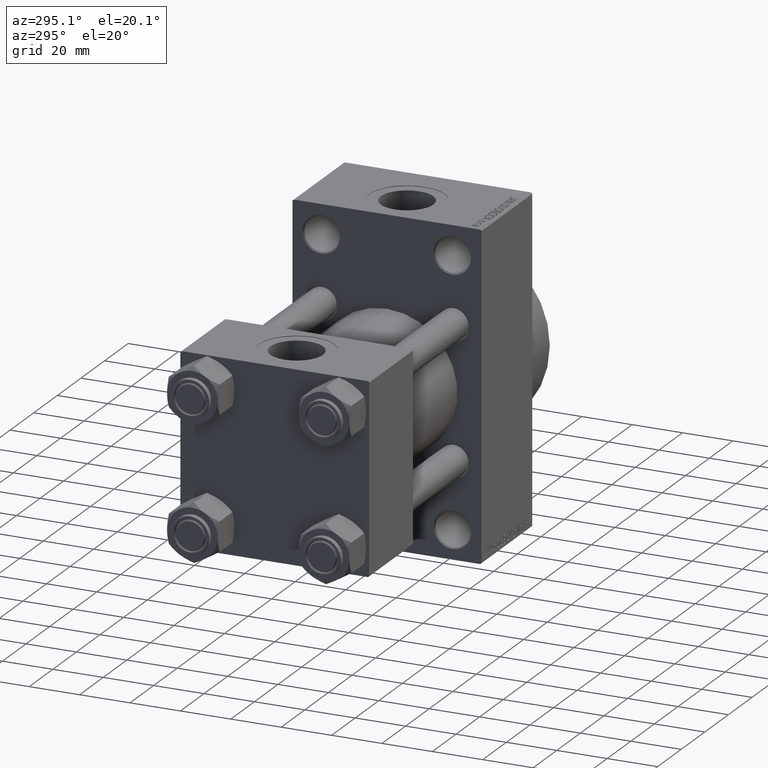
[diagram: clean part render]
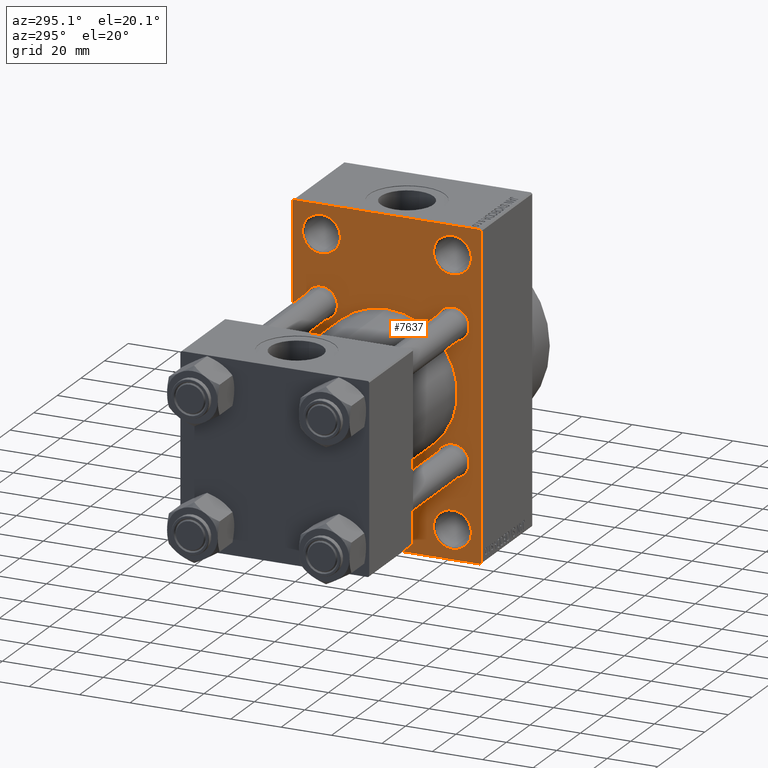
[diagram: same view with one face highlighted and labeled with its STEP entity id]
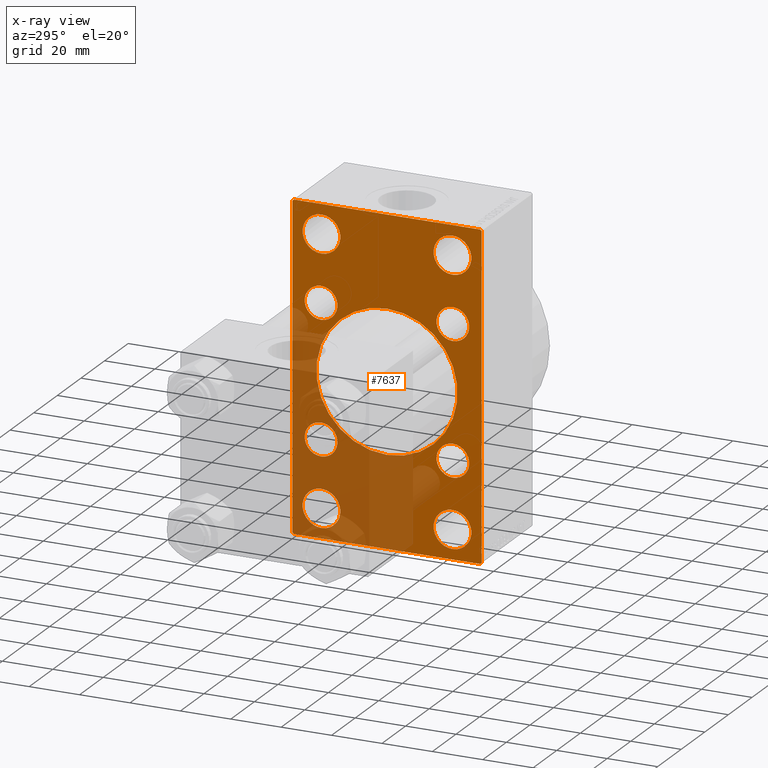
[diagram: x-ray of the same camera — body ghosted, the highlighted face saturated]
A machine part, auxiliary view. The second image highlights one B-rep face of the part: STEP entity #7637.
The next image is the same camera in x-ray: the body ghosted, the highlighted face saturated — about 37% of this face is hidden behind the body in this view.
In plain terms, the highlighted planar face has unit normal (-1, 0, 0).
Its self-contained STEP definition (entity closure, byte-faithful):
#173 = DIRECTION ( 'NONE',  ( 0.000000000000000000, 0.000000000000000000, 1.000000000000000000 ) ) ;
#477 = DIRECTION ( 'NONE',  ( 1.000000000000000000, -0.000000000000000000, 0.000000000000000000 ) ) ;
#812 = CARTESIAN_POINT ( 'NONE',  ( 95.00000000000000000, 8.269258236473776482E-16, -28.00000000000000000 ) ) ;
#918 = EDGE_LOOP ( 'NONE', ( #46518, #29435 ) ) ;
#1554 = LINE ( 'NONE', #27803, #47577 ) ;
#1596 = DIRECTION ( 'NONE',  ( 1.000000000000000000, -0.000000000000000000, 0.000000000000000000 ) ) ;
#2275 = CARTESIAN_POINT ( 'NONE',  ( 95.00000000000000000, -37.49999999999999289, 63.49999999999994316 ) ) ;
#2374 = CARTESIAN_POINT ( 'NONE',  ( 95.00000000000000000, -50.49999999999970868, 50.50000000000040501 ) ) ;
#2399 = ORIENTED_EDGE ( 'NONE', *, *, #43304, .T. ) ;
#2785 = AXIS2_PLACEMENT_3D ( 'NONE', #23182, #37879, #19566 ) ;
#3405 = CARTESIAN_POINT ( 'NONE',  ( 95.00000000000000000, -25.99999999999999645, 59.99999999999997868 ) ) ;
#3514 = ORIENTED_EDGE ( 'NONE', *, *, #41981, .T. ) ;
#3758 = EDGE_LOOP ( 'NONE', ( #3514, #2399 ) ) ;
#3868 = DIRECTION ( 'NONE',  ( 0.000000000000000000, -5.421010862427522170E-17, -1.000000000000000000 ) ) ;
#3911 = CARTESIAN_POINT ( 'NONE',  ( 95.00000000000000000, 26.00000000000000000, 52.49999999999999289 ) ) ;
#3943 = CARTESIAN_POINT ( 'NONE',  ( 95.00000000000000000, 36.99999999999997158, 63.99999999999998579 ) ) ;
#3975 = DIRECTION ( 'NONE',  ( 0.000000000000000000, 0.000000000000000000, 1.000000000000000000 ) ) ;
#4314 = VERTEX_POINT ( 'NONE', #13632 ) ;
#4448 = ORIENTED_EDGE ( 'NONE', *, *, #37592, .T. ) ;
#4760 = AXIS2_PLACEMENT_3D ( 'NONE', #15823, #44733, #33426 ) ;
#4849 = DIRECTION ( 'NONE',  ( 0.000000000000000000, 0.000000000000000000, 1.000000000000000000 ) ) ;
#4914 = ORIENTED_EDGE ( 'NONE', *, *, #26057, .T. ) ;
#5276 = VERTEX_POINT ( 'NONE', #12188 ) ;
#5713 = EDGE_CURVE ( 'NONE', #30526, #36212, #45836, .T. ) ;
#5764 = DIRECTION ( 'NONE',  ( -0.000000000000000000, 0.7071067811865524577, 0.7071067811865426878 ) ) ;
#5804 = CARTESIAN_POINT ( 'NONE',  ( 95.00000000000000000, -25.99999999999999645, 45.00000000000002132 ) ) ;
#6191 = VERTEX_POINT ( 'NONE', #10324 ) ;
#6220 = CIRCLE ( 'NONE', #11633, 7.499999999999978684 ) ;
#6575 = DIRECTION ( 'NONE',  ( 1.000000000000000000, 0.000000000000000000, 0.000000000000000000 ) ) ;
#6653 = CARTESIAN_POINT ( 'NONE',  ( 95.00000000000000000, 26.14999999999999858, -19.64999999999999503 ) ) ;
#7058 = AXIS2_PLACEMENT_3D ( 'NONE', #28549, #24689, #25182 ) ;
#7259 = CARTESIAN_POINT ( 'NONE',  ( 95.00000000000000000, -25.99999999999999645, -52.49999999999999289 ) ) ;
#7595 = LINE ( 'NONE', #29057, #13430 ) ;
#7637 = ADVANCED_FACE ( 'NONE', ( #16422, #15714, #46055, #20266, #45829, #41492, #8475, #34737, #12805, #38583 ), #45580, .T. ) ;
#7790 = DIRECTION ( 'NONE',  ( 0.000000000000000000, 0.000000000000000000, 1.000000000000000000 ) ) ;
#7932 = LINE ( 'NONE', #30365, #22520 ) ;
#8025 = CARTESIAN_POINT ( 'NONE',  ( 95.00000000000000000, -26.14999999999999147, -32.65000000000001990 ) ) ;
#8454 = EDGE_CURVE ( 'NONE', #5276, #35429, #1554, .T. ) ;
#8475 = FACE_BOUND ( 'NONE', #29706, .T. ) ;
#8674 = VERTEX_POINT ( 'NONE', #12043 ) ;
#8796 = ORIENTED_EDGE ( 'NONE', *, *, #20780, .T. ) ;
#8851 = EDGE_LOOP ( 'NONE', ( #4914, #46372 ) ) ;
#8979 = EDGE_CURVE ( 'NONE', #24511, #34808, #14900, .T. ) ;
#9250 = LINE ( 'NONE', #12885, #11079 ) ;
#9427 = DIRECTION ( 'NONE',  ( 0.000000000000000000, 0.000000000000000000, -1.000000000000000000 ) ) ;
#9702 = VERTEX_POINT ( 'NONE', #12954 ) ;
#9846 = ORIENTED_EDGE ( 'NONE', *, *, #14146, .T. ) ;
#9940 = EDGE_CURVE ( 'NONE', #13711, #35793, #30159, .T. ) ;
#10088 = EDGE_CURVE ( 'NONE', #32802, #18074, #28593, .T. ) ;
#10153 = CARTESIAN_POINT ( 'NONE',  ( 95.00000000000000000, -26.14999999999999147, 19.65000000000000213 ) ) ;
#10324 = CARTESIAN_POINT ( 'NONE',  ( 95.00000000000000000, 26.14999999999999858, 32.65000000000001990 ) ) ;
#10523 = CARTESIAN_POINT ( 'NONE',  ( 95.00000000000000000, 26.14999999999999858, 26.15000000000000213 ) ) ;
#10642 = CARTESIAN_POINT ( 'NONE',  ( 95.00000000000000000, -25.99999999999999645, -52.49999999999999289 ) ) ;
#10784 = EDGE_CURVE ( 'NONE', #35793, #13711, #32472, .T. ) ;
#10863 = ORIENTED_EDGE ( 'NONE', *, *, #45833, .F. ) ;
#11079 = VECTOR ( 'NONE', #27597, 1000.000000000000000 ) ;
#11258 = VECTOR ( 'NONE', #5764, 1000.000000000000000 ) ;
#11437 = DIRECTION ( 'NONE',  ( 1.000000000000000000, -0.000000000000000000, 0.000000000000000000 ) ) ;
#11633 = AXIS2_PLACEMENT_3D ( 'NONE', #12158, #37482, #11919 ) ;
#11735 = CARTESIAN_POINT ( 'NONE',  ( 95.00000000000000000, 26.00000000000000000, 45.00000000000001421 ) ) ;
#11823 = EDGE_CURVE ( 'NONE', #34808, #5276, #7932, .T. ) ;
#11919 = DIRECTION ( 'NONE',  ( 0.000000000000000000, 0.000000000000000000, 1.000000000000000000 ) ) ;
#12043 = CARTESIAN_POINT ( 'NONE',  ( 95.00000000000000000, -25.99999999999999645, -59.99999999999997158 ) ) ;
#12081 = AXIS2_PLACEMENT_3D ( 'NONE', #37589, #477, #40484 ) ;
#12158 = CARTESIAN_POINT ( 'NONE',  ( 95.00000000000000000, 26.00000000000000000, -52.49999999999999289 ) ) ;
#12188 = CARTESIAN_POINT ( 'NONE',  ( 95.00000000000000000, 37.49999999999999289, -63.50000000000001421 ) ) ;
#12630 = DIRECTION ( 'NONE',  ( -0.000000000000000000, -0.7071067811865573427, -0.7071067811865378028 ) ) ;
#12805 = FACE_BOUND ( 'NONE', #25846, .T. ) ;
#12831 = VERTEX_POINT ( 'NONE', #36729 ) ;
#12872 = CIRCLE ( 'NONE', #46707, 7.499999999999978684 ) ;
#12885 = CARTESIAN_POINT ( 'NONE',  ( 95.00000000000000000, -37.49999999999999289, 63.99999999999997158 ) ) ;
#12954 = CARTESIAN_POINT ( 'NONE',  ( 95.00000000000000000, -36.99999999999995737, 63.99999999999997158 ) ) ;
#12999 = DIRECTION ( 'NONE',  ( 1.000000000000000000, -0.000000000000000000, 0.000000000000000000 ) ) ;
#13119 = CARTESIAN_POINT ( 'NONE',  ( 95.00000000000000000, -26.14999999999999147, -19.65000000000000213 ) ) ;
#13314 = DIRECTION ( 'NONE',  ( 0.000000000000000000, 0.000000000000000000, -1.000000000000000000 ) ) ;
#13430 = VECTOR ( 'NONE', #18915, 999.9999999999998863 ) ;
#13632 = CARTESIAN_POINT ( 'NONE',  ( 95.00000000000000000, 26.00000000000000000, -45.00000000000001421 ) ) ;
#13711 = VERTEX_POINT ( 'NONE', #8025 ) ;
#14146 = EDGE_CURVE ( 'NONE', #20230, #41186, #38747, .T. ) ;
#14329 = VERTEX_POINT ( 'NONE', #37570 ) ;
#14393 = DIRECTION ( 'NONE',  ( 0.000000000000000000, 0.000000000000000000, 1.000000000000000000 ) ) ;
#14510 = EDGE_LOOP ( 'NONE', ( #40279, #34379 ) ) ;
#14900 = LINE ( 'NONE', #25756, #25244 ) ;
#15312 = EDGE_LOOP ( 'NONE', ( #29044, #15350 ) ) ;
#15350 = ORIENTED_EDGE ( 'NONE', *, *, #46854, .T. ) ;
#15460 = CARTESIAN_POINT ( 'NONE',  ( 95.00000000000000000, 26.14999999999999858, 19.64999999999999147 ) ) ;
#15465 = DIRECTION ( 'NONE',  ( 0.000000000000000000, 0.000000000000000000, 1.000000000000000000 ) ) ;
#15582 = CARTESIAN_POINT ( 'NONE',  ( 95.00000000000000000, -26.14999999999999147, -26.15000000000000924 ) ) ;
#15714 = FACE_BOUND ( 'NONE', #8851, .T. ) ;
#15823 = CARTESIAN_POINT ( 'NONE',  ( 95.00000000000000000, -26.14999999999999147, -26.15000000000000924 ) ) ;
#16400 = ORIENTED_EDGE ( 'NONE', *, *, #21219, .T. ) ;
#16422 = FACE_BOUND ( 'NONE', #38662, .T. ) ;
#16696 = CARTESIAN_POINT ( 'NONE',  ( 95.00000000000000000, 26.14999999999999858, -26.15000000000000213 ) ) ;
#16811 = EDGE_CURVE ( 'NONE', #24511, #9702, #23571, .T. ) ;
#17816 = EDGE_CURVE ( 'NONE', #36212, #30526, #24119, .T. ) ;
#18006 = DIRECTION ( 'NONE',  ( 1.000000000000000000, -0.000000000000000000, 0.000000000000000000 ) ) ;
#18074 = VERTEX_POINT ( 'NONE', #5804 ) ;
#18884 = CARTESIAN_POINT ( 'NONE',  ( 95.00000000000000000, -26.14999999999999147, 26.15000000000000924 ) ) ;
#18915 = DIRECTION ( 'NONE',  ( 0.000000000000000000, -0.7071067811865574537, 0.7071067811865376918 ) ) ;
#19155 = CARTESIAN_POINT ( 'NONE',  ( 95.00000000000000000, -26.14999999999999147, 26.15000000000000924 ) ) ;
#19432 = ORIENTED_EDGE ( 'NONE', *, *, #29902, .T. ) ;
#19566 = DIRECTION ( 'NONE',  ( -0.000000000000000000, 0.000000000000000000, 1.000000000000000000 ) ) ;
#19796 = CIRCLE ( 'NONE', #42114, 7.499999999999978684 ) ;
#19922 = CARTESIAN_POINT ( 'NONE',  ( 95.00000000000000000, 37.49999999999999289, -64.00000000000000000 ) ) ;
#20179 = CARTESIAN_POINT ( 'NONE',  ( 95.00000000000000000, 37.50000000000000000, 63.99999999999998579 ) ) ;
#20230 = VERTEX_POINT ( 'NONE', #32683 ) ;
#20266 = FACE_BOUND ( 'NONE', #918, .T. ) ;
#20362 = AXIS2_PLACEMENT_3D ( 'NONE', #16696, #31395, #42922 ) ;
#20706 = ORIENTED_EDGE ( 'NONE', *, *, #16811, .F. ) ;
#20780 = EDGE_CURVE ( 'NONE', #18074, #32802, #31920, .T. ) ;
#20946 = EDGE_CURVE ( 'NONE', #35429, #25142, #26922, .T. ) ;
#21171 = EDGE_CURVE ( 'NONE', #25288, #21368, #41908, .T. ) ;
#21219 = EDGE_CURVE ( 'NONE', #25142, #43876, #7595, .T. ) ;
#21368 = VERTEX_POINT ( 'NONE', #10153 ) ;
#21529 = CARTESIAN_POINT ( 'NONE',  ( 95.00000000000000000, -2.602085213965210642E-15, 0.000000000000000000 ) ) ;
#21618 = CARTESIAN_POINT ( 'NONE',  ( 95.00000000000000000, 36.99999999999999289, -64.00000000000000000 ) ) ;
#21968 = AXIS2_PLACEMENT_3D ( 'NONE', #23466, #27320, #9427 ) ;
#21987 = EDGE_LOOP ( 'NONE', ( #30411, #16400, #10863, #23409, #20706, #47705, #29788, #44780 ) ) ;
#22520 = VECTOR ( 'NONE', #3868, 1000.000000000000000 ) ;
#22943 = DIRECTION ( 'NONE',  ( 1.000000000000000000, -0.000000000000000000, 0.000000000000000000 ) ) ;
#22959 = CIRCLE ( 'NONE', #29118, 7.499999999999978684 ) ;
#23182 = CARTESIAN_POINT ( 'NONE',  ( 95.00000000000000000, 0.000000000000000000, 0.000000000000000000 ) ) ;
#23409 = ORIENTED_EDGE ( 'NONE', *, *, #23854, .T. ) ;
#23466 = CARTESIAN_POINT ( 'NONE',  ( 95.00000000000000000, -2.602085213965210642E-15, 0.000000000000000000 ) ) ;
#23571 = LINE ( 'NONE', #20179, #26406 ) ;
#23631 = CARTESIAN_POINT ( 'NONE',  ( 95.00000000000000000, 26.14999999999999858, -26.15000000000000213 ) ) ;
#23854 = EDGE_CURVE ( 'NONE', #45858, #9702, #25021, .T. ) ;
#24007 = ORIENTED_EDGE ( 'NONE', *, *, #5713, .T. ) ;
#24108 = AXIS2_PLACEMENT_3D ( 'NONE', #10523, #18006, #14393 ) ;
#24119 = CIRCLE ( 'NONE', #44908, 28.00000000000000000 ) ;
#24215 = CARTESIAN_POINT ( 'NONE',  ( 95.00000000000000000, -36.99999999999993605, -64.00000000000001421 ) ) ;
#24511 = VERTEX_POINT ( 'NONE', #3943 ) ;
#24689 = DIRECTION ( 'NONE',  ( 1.000000000000000000, -0.000000000000000000, 0.000000000000000000 ) ) ;
#25021 = LINE ( 'NONE', #2374, #11258 ) ;
#25120 = CARTESIAN_POINT ( 'NONE',  ( 95.00000000000000000, -2.602085213965210642E-15, 28.00000000000000000 ) ) ;
#25142 = VERTEX_POINT ( 'NONE', #24215 ) ;
#25182 = DIRECTION ( 'NONE',  ( 0.000000000000000000, 0.000000000000000000, 1.000000000000000000 ) ) ;
#25244 = VECTOR ( 'NONE', #25507, 1000.000000000000000 ) ;
#25288 = VERTEX_POINT ( 'NONE', #44668 ) ;
#25360 = DIRECTION ( 'NONE',  ( 1.000000000000000000, -0.000000000000000000, 0.000000000000000000 ) ) ;
#25507 = DIRECTION ( 'NONE',  ( 0.000000000000000000, 0.7071067811865672237, -0.7071067811865279218 ) ) ;
#25756 = CARTESIAN_POINT ( 'NONE',  ( 95.00000000000000000, 50.49999999999894840, 50.50000000000176215 ) ) ;
#25846 = EDGE_LOOP ( 'NONE', ( #37845, #24007 ) ) ;
#25977 = CARTESIAN_POINT ( 'NONE',  ( 95.00000000000000000, -25.99999999999999645, 52.50000000000000000 ) ) ;
#26057 = EDGE_CURVE ( 'NONE', #41677, #8674, #12872, .T. ) ;
#26094 = EDGE_CURVE ( 'NONE', #31917, #12831, #19796, .T. ) ;
#26290 = EDGE_CURVE ( 'NONE', #12831, #31917, #39800, .T. ) ;
#26406 = VECTOR ( 'NONE', #38274, 1000.000000000000000 ) ;
#26446 = AXIS2_PLACEMENT_3D ( 'NONE', #23631, #12999, #31104 ) ;
#26470 = AXIS2_PLACEMENT_3D ( 'NONE', #41463, #37141, #37849 ) ;
#26683 = ORIENTED_EDGE ( 'NONE', *, *, #10088, .T. ) ;
#26922 = LINE ( 'NONE', #19922, #45773 ) ;
#27320 = DIRECTION ( 'NONE',  ( 1.000000000000000000, 0.000000000000000000, 0.000000000000000000 ) ) ;
#27597 = DIRECTION ( 'NONE',  ( 0.000000000000000000, 0.000000000000000000, -1.000000000000000000 ) ) ;
#27803 = CARTESIAN_POINT ( 'NONE',  ( 95.00000000000000000, 50.49999999999948841, -50.50000000000088107 ) ) ;
#28235 = CIRCLE ( 'NONE', #32873, 7.499999999999978684 ) ;
#28549 = CARTESIAN_POINT ( 'NONE',  ( 95.00000000000000000, -25.99999999999999645, 52.50000000000000000 ) ) ;
#28593 = CIRCLE ( 'NONE', #7058, 7.499999999999978684 ) ;
#29044 = ORIENTED_EDGE ( 'NONE', *, *, #21171, .T. ) ;
#29057 = CARTESIAN_POINT ( 'NONE',  ( 95.00000000000000000, -50.49999999999945999, -50.50000000000086686 ) ) ;
#29118 = AXIS2_PLACEMENT_3D ( 'NONE', #7259, #36667, #33048 ) ;
#29262 = CARTESIAN_POINT ( 'NONE',  ( 95.00000000000000000, -25.99999999999999645, -45.00000000000001421 ) ) ;
#29435 = ORIENTED_EDGE ( 'NONE', *, *, #26094, .T. ) ;
#29706 = EDGE_LOOP ( 'NONE', ( #33247, #9846 ) ) ;
#29788 = ORIENTED_EDGE ( 'NONE', *, *, #11823, .T. ) ;
#29902 = EDGE_CURVE ( 'NONE', #4314, #14329, #28235, .T. ) ;
#30159 = CIRCLE ( 'NONE', #4760, 6.500000000000008882 ) ;
#30294 = DIRECTION ( 'NONE',  ( 0.000000000000000000, 0.000000000000000000, 1.000000000000000000 ) ) ;
#30365 = CARTESIAN_POINT ( 'NONE',  ( 95.00000000000000000, 37.50000000000000000, 63.99999999999998579 ) ) ;
#30404 = CARTESIAN_POINT ( 'NONE',  ( 95.00000000000000000, 26.00000000000000000, -52.49999999999999289 ) ) ;
#30411 = ORIENTED_EDGE ( 'NONE', *, *, #20946, .T. ) ;
#30526 = VERTEX_POINT ( 'NONE', #812 ) ;
#30859 = VERTEX_POINT ( 'NONE', #15460 ) ;
#31104 = DIRECTION ( 'NONE',  ( 0.000000000000000000, 0.000000000000000000, 1.000000000000000000 ) ) ;
#31395 = DIRECTION ( 'NONE',  ( 1.000000000000000000, -0.000000000000000000, 0.000000000000000000 ) ) ;
#31917 = VERTEX_POINT ( 'NONE', #11735 ) ;
#31920 = CIRCLE ( 'NONE', #34995, 7.499999999999978684 ) ;
#32472 = CIRCLE ( 'NONE', #38641, 6.500000000000008882 ) ;
#32683 = CARTESIAN_POINT ( 'NONE',  ( 95.00000000000000000, 26.14999999999999858, -32.65000000000001279 ) ) ;
#32687 = CIRCLE ( 'NONE', #35716, 6.500000000000008882 ) ;
#32802 = VERTEX_POINT ( 'NONE', #3405 ) ;
#32873 = AXIS2_PLACEMENT_3D ( 'NONE', #30404, #41697, #38341 ) ;
#33048 = DIRECTION ( 'NONE',  ( 0.000000000000000000, 0.000000000000000000, 1.000000000000000000 ) ) ;
#33236 = EDGE_LOOP ( 'NONE', ( #19432, #4448 ) ) ;
#33247 = ORIENTED_EDGE ( 'NONE', *, *, #46980, .T. ) ;
#33426 = DIRECTION ( 'NONE',  ( 0.000000000000000000, 0.000000000000000000, 1.000000000000000000 ) ) ;
#33762 = EDGE_CURVE ( 'NONE', #8674, #41677, #22959, .T. ) ;
#34203 = CIRCLE ( 'NONE', #20362, 6.500000000000008882 ) ;
#34379 = ORIENTED_EDGE ( 'NONE', *, *, #9940, .T. ) ;
#34737 = FACE_BOUND ( 'NONE', #14510, .T. ) ;
#34808 = VERTEX_POINT ( 'NONE', #37509 ) ;
#34995 = AXIS2_PLACEMENT_3D ( 'NONE', #25977, #40661, #173 ) ;
#35429 = VERTEX_POINT ( 'NONE', #21618 ) ;
#35716 = AXIS2_PLACEMENT_3D ( 'NONE', #18884, #40808, #7790 ) ;
#35793 = VERTEX_POINT ( 'NONE', #13119 ) ;
#36212 = VERTEX_POINT ( 'NONE', #25120 ) ;
#36550 = AXIS2_PLACEMENT_3D ( 'NONE', #19155, #11437, #3975 ) ;
#36667 = DIRECTION ( 'NONE',  ( 1.000000000000000000, -0.000000000000000000, 0.000000000000000000 ) ) ;
#36729 = CARTESIAN_POINT ( 'NONE',  ( 95.00000000000000000, 26.00000000000000000, 59.99999999999997158 ) ) ;
#37141 = DIRECTION ( 'NONE',  ( 1.000000000000000000, -0.000000000000000000, 0.000000000000000000 ) ) ;
#37482 = DIRECTION ( 'NONE',  ( 1.000000000000000000, -0.000000000000000000, 0.000000000000000000 ) ) ;
#37509 = CARTESIAN_POINT ( 'NONE',  ( 95.00000000000000000, 37.50000000000000000, 63.49999999999998579 ) ) ;
#37570 = CARTESIAN_POINT ( 'NONE',  ( 95.00000000000000000, 26.00000000000000000, -59.99999999999997158 ) ) ;
#37589 = CARTESIAN_POINT ( 'NONE',  ( 95.00000000000000000, 26.00000000000000000, 52.49999999999999289 ) ) ;
#37592 = EDGE_CURVE ( 'NONE', #14329, #4314, #6220, .T. ) ;
#37845 = ORIENTED_EDGE ( 'NONE', *, *, #17816, .T. ) ;
#37849 = DIRECTION ( 'NONE',  ( 0.000000000000000000, 0.000000000000000000, 1.000000000000000000 ) ) ;
#37879 = DIRECTION ( 'NONE',  ( -1.000000000000000000, 0.000000000000000000, -0.000000000000000000 ) ) ;
#38274 = DIRECTION ( 'NONE',  ( 0.000000000000000000, -1.000000000000000000, -1.850371707708594563E-16 ) ) ;
#38341 = DIRECTION ( 'NONE',  ( 0.000000000000000000, 0.000000000000000000, 1.000000000000000000 ) ) ;
#38583 = FACE_OUTER_BOUND ( 'NONE', #21987, .T. ) ;
#38641 = AXIS2_PLACEMENT_3D ( 'NONE', #15582, #1596, #30294 ) ;
#38662 = EDGE_LOOP ( 'NONE', ( #26683, #8796 ) ) ;
#38747 = CIRCLE ( 'NONE', #26446, 6.500000000000008882 ) ;
#39800 = CIRCLE ( 'NONE', #12081, 7.499999999999978684 ) ;
#40279 = ORIENTED_EDGE ( 'NONE', *, *, #10784, .T. ) ;
#40484 = DIRECTION ( 'NONE',  ( 0.000000000000000000, 0.000000000000000000, 1.000000000000000000 ) ) ;
#40661 = DIRECTION ( 'NONE',  ( 1.000000000000000000, -0.000000000000000000, 0.000000000000000000 ) ) ;
#40808 = DIRECTION ( 'NONE',  ( 1.000000000000000000, -0.000000000000000000, 0.000000000000000000 ) ) ;
#41186 = VERTEX_POINT ( 'NONE', #6653 ) ;
#41463 = CARTESIAN_POINT ( 'NONE',  ( 95.00000000000000000, 26.14999999999999858, 26.15000000000000213 ) ) ;
#41492 = FACE_BOUND ( 'NONE', #3758, .T. ) ;
#41677 = VERTEX_POINT ( 'NONE', #29262 ) ;
#41697 = DIRECTION ( 'NONE',  ( 1.000000000000000000, -0.000000000000000000, 0.000000000000000000 ) ) ;
#41908 = CIRCLE ( 'NONE', #36550, 6.500000000000008882 ) ;
#41981 = EDGE_CURVE ( 'NONE', #6191, #30859, #47225, .T. ) ;
#42083 = DIRECTION ( 'NONE',  ( 0.000000000000000000, -1.000000000000000000, -1.850371707708594563E-16 ) ) ;
#42114 = AXIS2_PLACEMENT_3D ( 'NONE', #3911, #22943, #4849 ) ;
#42922 = DIRECTION ( 'NONE',  ( 0.000000000000000000, 0.000000000000000000, 1.000000000000000000 ) ) ;
#43304 = EDGE_CURVE ( 'NONE', #30859, #6191, #43321, .T. ) ;
#43321 = CIRCLE ( 'NONE', #24108, 6.500000000000008882 ) ;
#43876 = VERTEX_POINT ( 'NONE', #45633 ) ;
#44668 = CARTESIAN_POINT ( 'NONE',  ( 95.00000000000000000, -26.14999999999999147, 32.65000000000001990 ) ) ;
#44733 = DIRECTION ( 'NONE',  ( 1.000000000000000000, -0.000000000000000000, 0.000000000000000000 ) ) ;
#44780 = ORIENTED_EDGE ( 'NONE', *, *, #8454, .T. ) ;
#44908 = AXIS2_PLACEMENT_3D ( 'NONE', #21529, #6575, #13314 ) ;
#45580 = PLANE ( 'NONE',  #2785 ) ;
#45633 = CARTESIAN_POINT ( 'NONE',  ( 95.00000000000000000, -37.49999999999999289, -63.49999999999997158 ) ) ;
#45773 = VECTOR ( 'NONE', #42083, 1000.000000000000000 ) ;
#45829 = FACE_BOUND ( 'NONE', #15312, .T. ) ;
#45833 = EDGE_CURVE ( 'NONE', #45858, #43876, #9250, .T. ) ;
#45836 = CIRCLE ( 'NONE', #21968, 28.00000000000000000 ) ;
#45858 = VERTEX_POINT ( 'NONE', #2275 ) ;
#46055 = FACE_BOUND ( 'NONE', #33236, .T. ) ;
#46372 = ORIENTED_EDGE ( 'NONE', *, *, #33762, .T. ) ;
#46518 = ORIENTED_EDGE ( 'NONE', *, *, #26290, .T. ) ;
#46707 = AXIS2_PLACEMENT_3D ( 'NONE', #10642, #25360, #15465 ) ;
#46854 = EDGE_CURVE ( 'NONE', #21368, #25288, #32687, .T. ) ;
#46980 = EDGE_CURVE ( 'NONE', #41186, #20230, #34203, .T. ) ;
#47225 = CIRCLE ( 'NONE', #26470, 6.500000000000008882 ) ;
#47577 = VECTOR ( 'NONE', #12630, 1000.000000000000000 ) ;
#47705 = ORIENTED_EDGE ( 'NONE', *, *, #8979, .T. ) ;